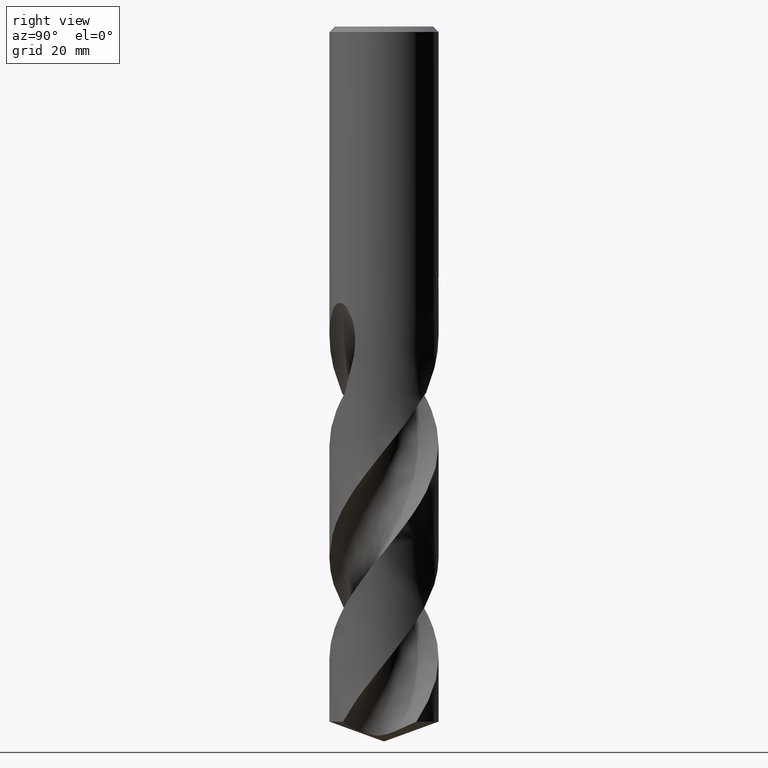
[diagram: clean part render]
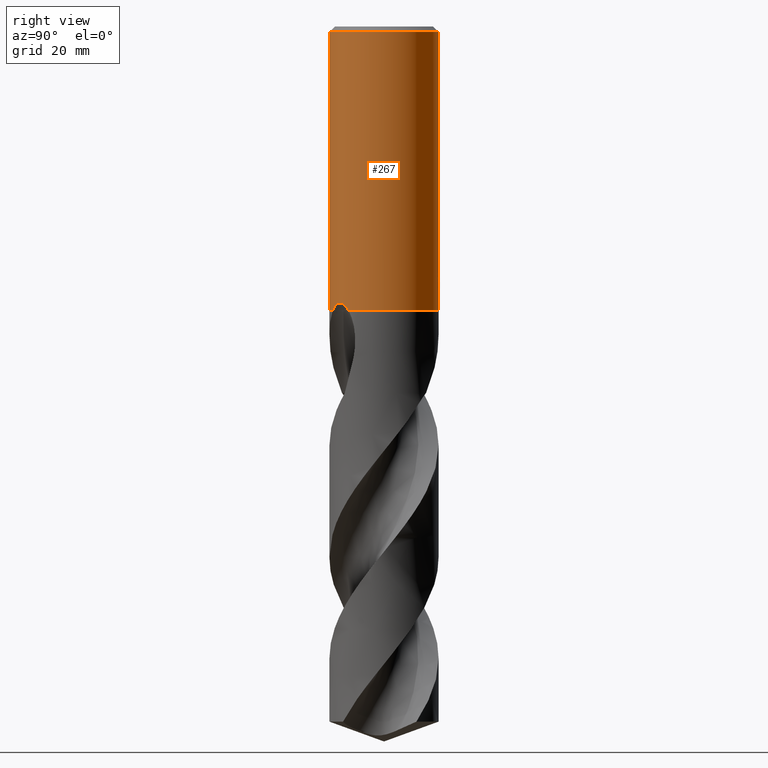
[diagram: same view with one face highlighted and labeled with its STEP entity id]
A machine part, right view. The second image highlights one B-rep face of the part: STEP entity #267.
In plain terms, the highlighted cylindrical surface (partial cylindrical patch) has radius 10 mm, axis along (-0, -0, 1).
Its self-contained STEP definition (entity closure, byte-faithful):
#259=EDGE_CURVE('',#479,#301,#710,.T.);
#267=ADVANCED_FACE('',(#718),#719,.T.);
#275=VERTEX_POINT('',#728);
#279=EDGE_CURVE('',#275,#499,#732,.T.);
#281=VERTEX_POINT('',#734);
#301=VERTEX_POINT('',#756);
#339=EDGE_CURVE('',#437,#503,#799,.T.);
#367=EDGE_CURVE('',#275,#543,#828,.T.);
#381=VERTEX_POINT('',#845);
#423=EDGE_CURVE('',#499,#503,#893,.T.);
#427=EDGE_CURVE('',#633,#479,#897,.T.);
#437=VERTEX_POINT('',#908);
#449=EDGE_CURVE('',#543,#633,#920,.T.);
#455=EDGE_CURVE('',#655,#281,#927,.T.);
#479=VERTEX_POINT('',#952);
#491=EDGE_CURVE('',#655,#647,#964,.T.);
#499=VERTEX_POINT('',#972);
#503=VERTEX_POINT('',#976);
#515=EDGE_CURVE('',#381,#281,#989,.T.);
#543=VERTEX_POINT('',#1020);
#571=VERTEX_POINT('',#1051);
#577=EDGE_CURVE('',#437,#671,#1057,.T.);
#603=EDGE_CURVE('',#671,#647,#1087,.T.);
#633=VERTEX_POINT('',#1120);
#645=EDGE_CURVE('',#301,#571,#1133,.T.);
#647=VERTEX_POINT('',#1135);
#649=EDGE_CURVE('',#571,#381,#1137,.T.);
#655=VERTEX_POINT('',#1143);
#671=VERTEX_POINT('',#1160);
#710=B_SPLINE_CURVE_WITH_KNOTS('',3,(#1197,#1198,#1199,#1200,#1201,#1202,#1203,#1204,#1205,#1206),.UNSPECIFIED.,.F.,.F.,(4,2,2,2,4),(7.99091091999269,8.29818999791823,8.60546907584376,8.91280365499799,9.22013823415221),.UNSPECIFIED.);
#718=FACE_OUTER_BOUND('',#1310,.T.);
#719=CYLINDRICAL_SURFACE('',#1311,10.0);
#728=CARTESIAN_POINT('',(-1.35669298148213E-014,10.0,-48.0310253601033));
#732=LINE('',#1447,#1448);
#734=CARTESIAN_POINT('',(-3.99981616236116E-014,10.0,-46.0232688117743));
#756=CARTESIAN_POINT('',(1.33721006514658,9.91019017182166,-47.2901657003257));
#799=B_SPLINE_CURVE_WITH_KNOTS('',3,(#2717,#2718,#2719,#2720,#2721,#2722,#2723,#2724,#2725,#2726,#2727,#2728),.UNSPECIFIED.,.F.,.F.,(4,2,2,2,2,4),(0.0,1.89613414770583,3.04606451584362,3.98992032273045,4.95094800131168,5.98181749088316),.UNSPECIFIED.);
#828=B_SPLINE_CURVE_WITH_KNOTS('',3,(#2809,#2810,#2811,#2812,#2813,#2814,#2815,#2816,#2817,#2818,#2819,#2820,#2821,#2822,#2823,#2824),.UNSPECIFIED.,.F.,.F.,(4,2,2,2,2,2,2,4),(5.83944513454238,6.14679214338257,6.45418245254276,6.76157276170296,7.06896307086316,7.37635338002335,7.68363248408606,7.99091158814877),.UNSPECIFIED.);
#845=CARTESIAN_POINT('',(0.799431726384364,9.9679942272681,-45.000000276873));
#893=CIRCLE('',#3051,10.0);
#897=LINE('',#3056,#3057);
#908=CARTESIAN_POINT('',(3.40150332854222,-9.40371070939106,-52.0));
#920=ELLIPSE('',#3110,30.4799457336977,10.0);
#927=LINE('',#3192,#3193);
#952=CARTESIAN_POINT('',(0.873560781758956,9.96177150714534,-47.7587351791531));
#964=CIRCLE('',#3574,10.0);
#972=CARTESIAN_POINT('',(-1.22460635382238E-015,10.0,-52.0));
#976=CARTESIAN_POINT('',(7.57979875613946,-6.52277937818125,-52.0));
#989=B_SPLINE_CURVE_WITH_KNOTS('',3,(#3651,#3652,#3653,#3654,#3655,#3656,#3657,#3658,#3659,#3660,#3661,#3662,#3663,#3664,#3665,#3666,#3667,#3668,#3669,#3670,#3671,#3672,#3673,#3674,#3675,#3676,#3677),.UNSPECIFIED.,.F.,.F.,(4,2,3,2,2,2,2,2,2,2,2,2,4),(-0.541802545815886,-0.270901272907944,0.0,0.270901272907943,0.541802545815886,0.81284682687821,1.08389110794053,1.35469822290543,1.62550533787032,1.89638249475778,2.16725965164523,2.43813680853269,2.70901396542014),.UNSPECIFIED.);
#1020=CARTESIAN_POINT('',(0.29010312703583,9.99579112305194,-47.9998328990228));
#1051=CARTESIAN_POINT('',(1.33721006514658,9.91019017182166,-45.5150484364821));
#1057=CIRCLE('',#4825,10.0);
#1087=LINE('',#4879,#4880);
#1120=CARTESIAN_POINT('',(0.873560781758957,9.96177150714534,-46.3198931596091));
#1133=LINE('',#5148,#5149);
#1135=CARTESIAN_POINT('',(1.22460635382238E-015,-10.0,-1.0));
#1137=B_SPLINE_CURVE_WITH_KNOTS('',3,(#5154,#5155,#5156,#5157,#5158,#5159,#5160,#5161,#5162,#5163),.UNSPECIFIED.,.F.,.F.,(4,2,2,2,4),(0.614669179469724,0.922003769204585,1.22933835893945,1.53661744736939,1.84389653579933),.UNSPECIFIED.);
#1143=CARTESIAN_POINT('',(0.0,10.0,-1.0));
#1160=CARTESIAN_POINT('',(1.22460635382238E-015,-10.0,-52.0));
#1197=CARTESIAN_POINT('',(0.595348033758918,9.98226230464314,-47.9071117362907));
#1198=CARTESIAN_POINT('',(0.695636622753305,9.9762810338424,-47.8655358878276));
#1199=CARTESIAN_POINT('',(0.791750048223843,9.96900634924688,-47.8137873142641));
#1200=CARTESIAN_POINT('',(0.969446837203863,9.95329737122581,-47.694269075469));
#1201=CARTESIAN_POINT('',(1.05102634871766,9.94487923323725,-47.6264915604873));
#1202=CARTESIAN_POINT('',(1.19543804880208,9.9285552387117,-47.4820927915628));
#1203=CARTESIAN_POINT('',(1.26323006627282,9.92007489890215,-47.4005073724643));
#1204=CARTESIAN_POINT('',(1.38277176912082,9.90411926598368,-47.2227999242972));
#1205=CARTESIAN_POINT('',(1.43452942123445,9.89666070198186,-47.1266817528232));
#1206=CARTESIAN_POINT('',(1.47611323206491,9.89045447520602,-47.0263869410268));
#1310=EDGE_LOOP('',(#5315,#5316,#5317,#5318,#5319,#5320,#5321,#5322,#5323,#5324,#5325,#5326,#5327,#5328));
#1311=AXIS2_PLACEMENT_3D('',#5329,#5330,#5331);
#1447=CARTESIAN_POINT('',(-1.22460635382238E-015,10.0,-51.0));
#1448=VECTOR('',#5344,1.0);
#2717=CARTESIAN_POINT('',(3.40150332854223,-9.40371070939106,-52.0));
#2718=CARTESIAN_POINT('',(3.83822309560641,-9.24574075612299,-51.5712788064261));
#2719=CARTESIAN_POINT('',(4.32723757451888,-9.03379357086506,-51.1691342093391));
#2720=CARTESIAN_POINT('',(5.14050058425302,-8.58476838990782,-50.7625621123041));
#2721=CARTESIAN_POINT('',(5.45496356766112,-8.38983746742268,-50.6634705928973));
#2722=CARTESIAN_POINT('',(6.02333440969219,-7.98860459270667,-50.6387764434761));
#2723=CARTESIAN_POINT('',(6.26447965654865,-7.80023476970778,-50.6859988280054));
#2724=CARTESIAN_POINT('',(6.71835136445926,-7.41311882502728,-50.8981964229764));
#2725=CARTESIAN_POINT('',(6.91932637920897,-7.22395681629364,-51.0600173038608));
#2726=CARTESIAN_POINT('',(7.28482611147761,-6.85590052677428,-51.472166540848));
#2727=CARTESIAN_POINT('',(7.44443057358098,-6.68008403656198,-51.7265629546745));
#2728=CARTESIAN_POINT('',(7.57979875613946,-6.52277937818126,-52.0));
#2809=CARTESIAN_POINT('',(-1.37976576811865,9.90435492221114,-47.3115943007323));
#2810=CARTESIAN_POINT('',(-1.32001060155391,9.91267935463553,-47.4004331869039));
#2811=CARTESIAN_POINT('',(-1.25223996047312,9.92155125417361,-47.4820027767334));
#2812=CARTESIAN_POINT('',(-1.1078604922315,9.93870871021881,-47.6263956389043));
#2813=CARTESIAN_POINT('',(-1.02628618359087,9.94759770563262,-47.6941810715273));
#2814=CARTESIAN_POINT('',(-0.848595876347134,9.96432880240077,-47.8137174778138));
#2815=CARTESIAN_POINT('',(-0.75248367428853,9.97215473340405,-47.8654763576232));
#2816=CARTESIAN_POINT('',(-0.551897147205312,9.985264705805,-47.9486503310819));
#2817=CARTESIAN_POINT('',(-0.447259744678966,9.9905481801403,-47.9801314842337));
#2818=CARTESIAN_POINT('',(-0.236724775990606,9.99775252741072,-48.021447254083));
#2819=CARTESIAN_POINT('',(-0.130825193617452,9.99966917075316,-48.0312723335086));
#2820=CARTESIAN_POINT('',(0.0740637867087739,10.0002502826861,-48.0312723335086));
#2821=CARTESIAN_POINT('',(0.179935644836185,9.99893541456487,-48.0214542365361));
#2822=CARTESIAN_POINT('',(0.390432623124258,9.9929299320931,-47.9801573825091));
#2823=CARTESIAN_POINT('',(0.495059708001865,9.98824356248279,-47.9486880233331));
#2824=CARTESIAN_POINT('',(0.595348305374952,9.9822622884438,-47.9071121713553));
#3051=AXIS2_PLACEMENT_3D('',#5525,#5526,#5527);
#3056=CARTESIAN_POINT('',(0.873560781758957,9.96177150714534,-47.0393141693811));
#3057=VECTOR('',#5528,1.0);
#3110=AXIS2_PLACEMENT_3D('',#5548,#5549,#5550);
#3192=CARTESIAN_POINT('',(-1.22460635382238E-015,10.0,-51.0));
#3193=VECTOR('',#5560,1.0);
#3574=AXIS2_PLACEMENT_3D('',#5581,#5582,#5583);
#3651=CARTESIAN_POINT('',(0.664915977966917,9.97786984993512,-44.8133894136932));
#3652=CARTESIAN_POINT('',(0.728688674387072,9.97362009668663,-44.8771792986113));
#3653=CARTESIAN_POINT('',(0.783989694160825,9.96928857071991,-44.9579730846944));
#3654=CARTESIAN_POINT('',(0.857347080811514,9.96324798615422,-45.1350525105681));
#3655=CARTESIAN_POINT('',(0.875400981188567,9.96160996637261,-45.2313415882841));
#3656=CARTESIAN_POINT('',(0.875400981188567,9.96160996637261,-45.3216420125868));
#3657=CARTESIAN_POINT('',(0.875400981188567,9.96160996637261,-45.4119424368894));
#3658=CARTESIAN_POINT('',(0.857347080811514,9.96324798615422,-45.5082315146055));
#3659=CARTESIAN_POINT('',(0.783989694160825,9.96928857071991,-45.6853109404792));
#3660=CARTESIAN_POINT('',(0.728688674387073,9.97362009668663,-45.7661047265623));
#3661=CARTESIAN_POINT('',(0.601109616088073,9.98212184661851,-45.893718170931));
#3662=CARTESIAN_POINT('',(0.520298591277297,9.98684870186839,-45.949049646533));
#3663=CARTESIAN_POINT('',(0.34317748459051,9.99450283065823,-46.0224500626469));
#3664=CARTESIAN_POINT('',(0.246863416137745,9.99736071329857,-46.0405166027747));
#3665=CARTESIAN_POINT('',(0.0662684115443083,10.0001878480812,-46.0405166027747));
#3666=CARTESIAN_POINT('',(-0.0300091605493115,10.0003470819651,-46.0224783240056));
#3667=CARTESIAN_POINT('',(-0.207110342439543,9.99824722716825,-45.9491253774884));
#3668=CARTESIAN_POINT('',(-0.287935151079464,9.99605776418933,-45.8938116275657));
#3669=CARTESIAN_POINT('',(-0.415582863165922,9.99156496598809,-45.7661859867934));
#3670=CARTESIAN_POINT('',(-0.470914704352814,9.98897337526616,-45.6853560831407));
#3671=CARTESIAN_POINT('',(-0.544297914348358,9.9852435890814,-45.5082312501894));
#3672=CARTESIAN_POINT('',(-0.562348199187247,9.9841757047275,-45.4119343982159));
#3673=CARTESIAN_POINT('',(-0.562348199187247,9.9841757047275,-45.2313496269576));
#3674=CARTESIAN_POINT('',(-0.544297914348358,9.9852435890814,-45.1350527749842));
#3675=CARTESIAN_POINT('',(-0.470914704352814,9.98897337526616,-44.9579279420329));
#3676=CARTESIAN_POINT('',(-0.415582863165922,9.99156496598809,-44.8770980383802));
#3677=CARTESIAN_POINT('',(-0.351750754445228,9.99381165555701,-44.8132769667435));
#4825=AXIS2_PLACEMENT_3D('',#5660,#5661,#5662);
#4879=CARTESIAN_POINT('',(1.22460635382238E-015,-10.0,-51.0));
#4880=VECTOR('',#5736,1.0);
#5148=CARTESIAN_POINT('',(1.33721006514658,9.91019017182166,-46.4026070684039));
#5149=VECTOR('',#5797,1.0);
#5154=CARTESIAN_POINT('',(1.47611324015053,9.89045447399928,-45.7788272099216));
#5155=CARTESIAN_POINT('',(1.43452942788626,9.89666070102385,-45.6785323946766));
#5156=CARTESIAN_POINT('',(1.38277177398829,9.90411926531678,-45.5824142198981));
#5157=CARTESIAN_POINT('',(1.263230067018,9.92007489881992,-45.4047067656217));
#5158=CARTESIAN_POINT('',(1.19543804720899,9.92855523892185,-45.3231213437185));
#5159=CARTESIAN_POINT('',(1.05102634215707,9.94487923394878,-45.1787225698469));
#5160=CARTESIAN_POINT('',(0.969446827846484,9.95329737216453,-45.1109450525494));
#5161=CARTESIAN_POINT('',(0.791750032774425,9.96900635050116,-44.99142680967));
#5162=CARTESIAN_POINT('',(0.69563660400873,9.97628103518399,-44.9396782343377));
#5163=CARTESIAN_POINT('',(0.595348011577208,9.98226230596607,-44.8981023844542));
#5315=ORIENTED_EDGE('',*,*,#455,.F.);
#5316=ORIENTED_EDGE('',*,*,#491,.T.);
#5317=ORIENTED_EDGE('',*,*,#603,.F.);
#5318=ORIENTED_EDGE('',*,*,#577,.F.);
#5319=ORIENTED_EDGE('',*,*,#339,.T.);
#5320=ORIENTED_EDGE('',*,*,#423,.F.);
#5321=ORIENTED_EDGE('',*,*,#279,.F.);
#5322=ORIENTED_EDGE('',*,*,#367,.T.);
#5323=ORIENTED_EDGE('',*,*,#449,.T.);
#5324=ORIENTED_EDGE('',*,*,#427,.T.);
#5325=ORIENTED_EDGE('',*,*,#259,.T.);
#5326=ORIENTED_EDGE('',*,*,#645,.T.);
#5327=ORIENTED_EDGE('',*,*,#649,.T.);
#5328=ORIENTED_EDGE('',*,*,#515,.T.);
#5329=CARTESIAN_POINT('',(0.0,0.0,-51.0));
#5330=DIRECTION('',(-0.0,-0.0,1.0));
#5331=DIRECTION('',(0.0,1.0,0.0));
#5344=DIRECTION('',(0.0,0.0,-1.0));
#5525=CARTESIAN_POINT('',(0.0,0.0,-52.0));
#5526=DIRECTION('',(0.0,0.0,-1.0));
#5527=DIRECTION('',(0.0,1.0,0.0));
#5528=DIRECTION('',(0.0,0.0,-1.0));
#5548=CARTESIAN_POINT('',(0.0,0.0,-48.8351219173269));
#5549=DIRECTION('',(0.944648353914092,0.0,-0.328084573619969));
#5550=DIRECTION('',(0.328084573619969,-0.0,0.944648353914092));
#5560=DIRECTION('',(0.0,0.0,-1.0));
#5581=CARTESIAN_POINT('',(0.0,0.0,-1.0));
#5582=DIRECTION('',(0.0,0.0,-1.0));
#5583=DIRECTION('',(0.0,1.0,0.0));
#5660=CARTESIAN_POINT('',(0.0,0.0,-52.0));
#5661=DIRECTION('',(0.0,0.0,-1.0));
#5662=DIRECTION('',(0.0,1.0,0.0));
#5736=DIRECTION('',(-0.0,-0.0,1.0));
#5797=DIRECTION('',(-0.0,-0.0,1.0));